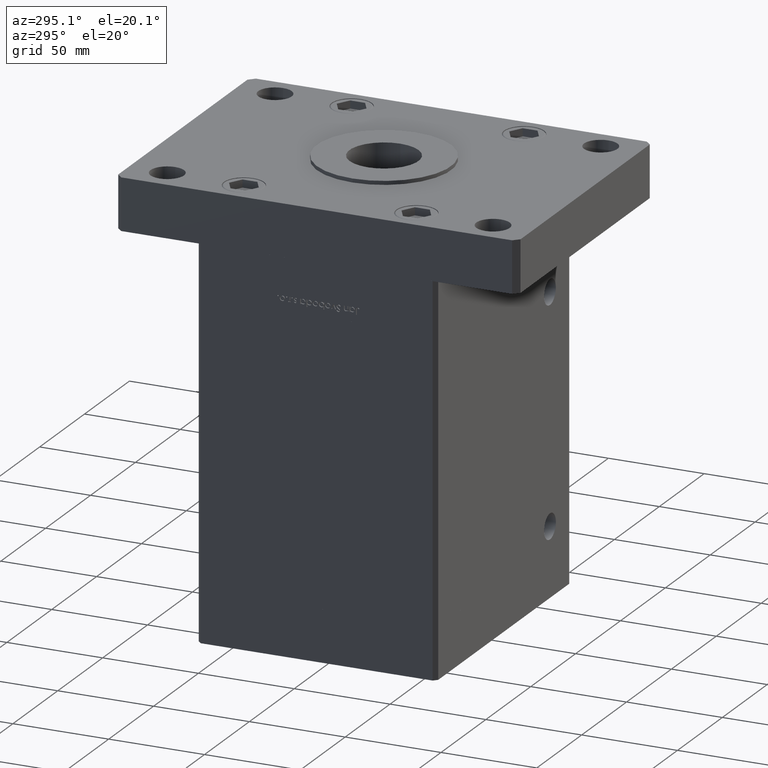
[diagram: clean part render]
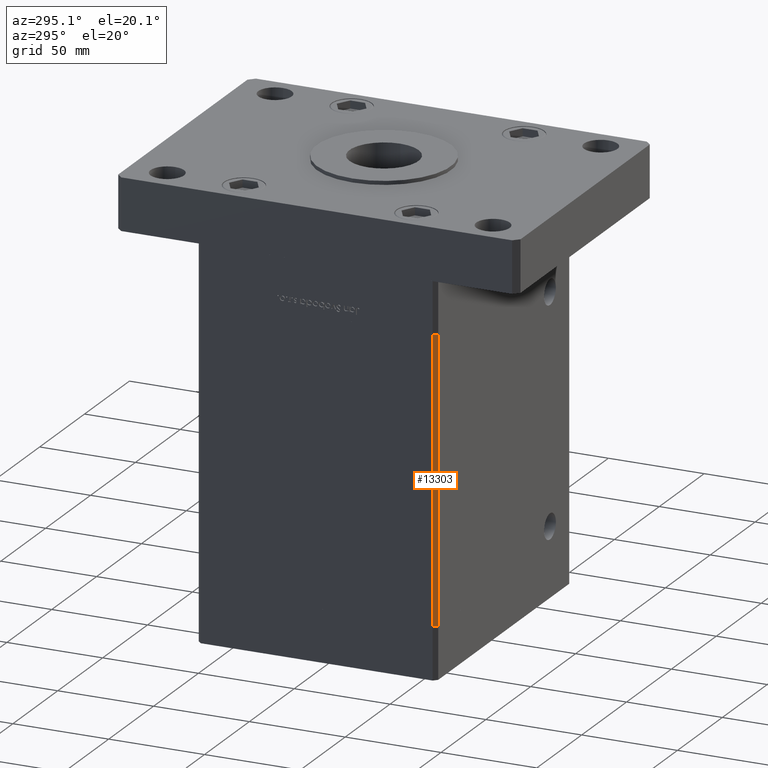
[diagram: same view with one face highlighted and labeled with its STEP entity id]
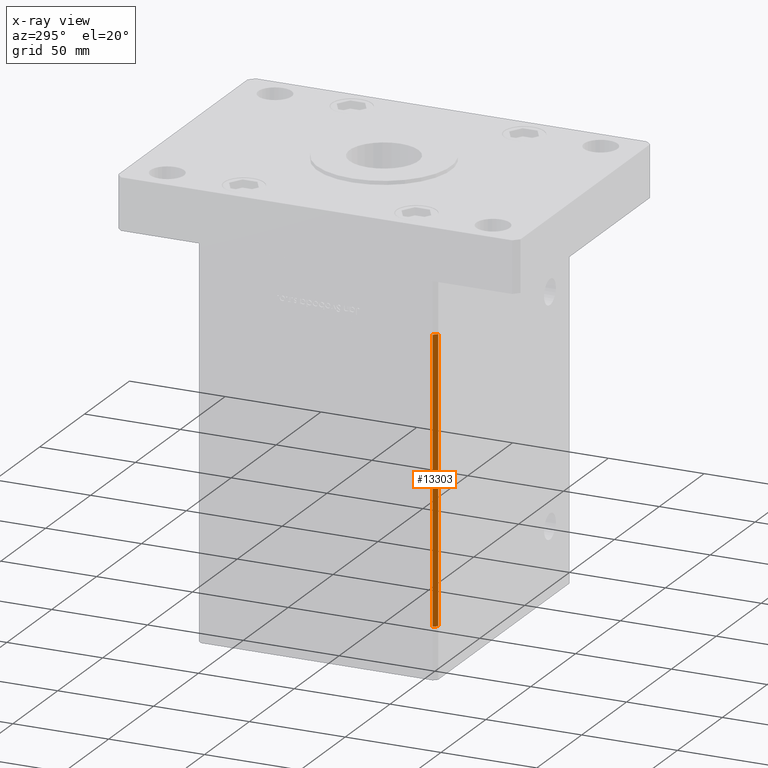
[diagram: x-ray of the same camera — body ghosted, the highlighted face saturated]
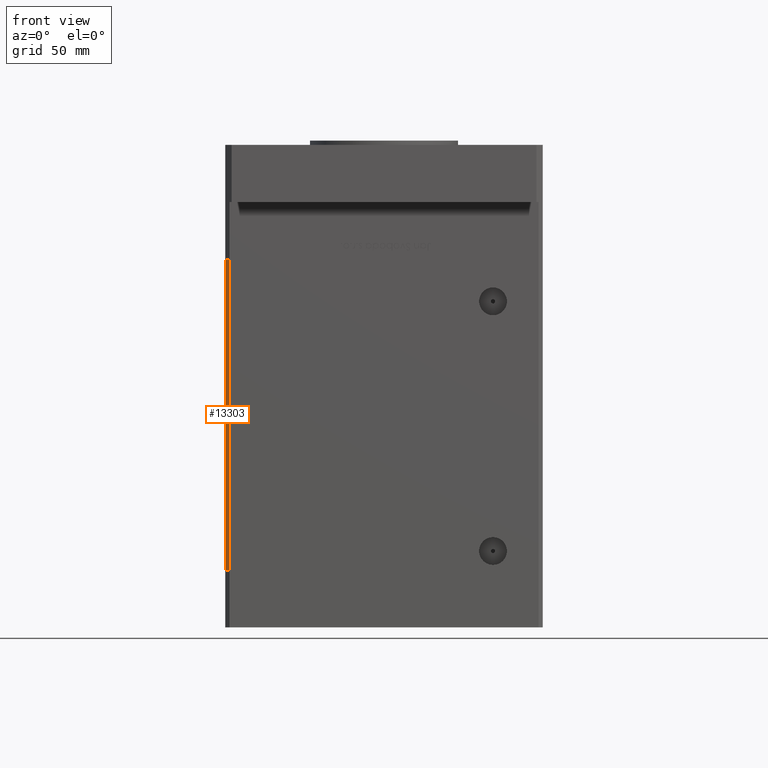
[diagram: same view with one face highlighted and labeled with its STEP entity id]
A machine part, auxiliary view. The second image highlights one B-rep face of the part: STEP entity #13303.
The next image is the same camera in x-ray: the body ghosted, the highlighted face saturated — about 0% of this face is hidden behind the body in this view.
A second angle (front view) of the same face is appended — the face is thin or edge-on in the first view.
In plain terms, the highlighted planar face has unit normal (0.7071, 0.7071, 0).
Its self-contained STEP definition (entity closure, byte-faithful):
#724 = EDGE_CURVE ( 'NONE', #26017, #29389, #10284, .T. ) ;
#1075 = LINE ( 'NONE', #42761, #29536 ) ;
#3327 = LINE ( 'NONE', #19012, #11166 ) ;
#5355 = VERTEX_POINT ( 'NONE', #26880 ) ;
#7055 = CARTESIAN_POINT ( 'NONE',  ( -74.99999999999998579, -60.50000000000000000, 147.0000000000000000 ) ) ;
#7624 = EDGE_LOOP ( 'NONE', ( #7954, #47527, #19306, #51967 ) ) ;
#7954 = ORIENTED_EDGE ( 'NONE', *, *, #724, .T. ) ;
#9001 = CARTESIAN_POINT ( 'NONE',  ( -74.99999999999998579, -60.50000000000000000, 147.0000000000000000 ) ) ;
#10284 = LINE ( 'NONE', #30592, #45245 ) ;
#11105 = LINE ( 'NONE', #7055, #11478 ) ;
#11166 = VECTOR ( 'NONE', #40142, 1000.000000000000114 ) ;
#11478 = VECTOR ( 'NONE', #23549, 1000.000000000000000 ) ;
#13231 = DIRECTION ( 'NONE',  ( -0.000000000000000000, -0.000000000000000000, -1.000000000000000000 ) ) ;
#13303 = ADVANCED_FACE ( 'NONE', ( #43096 ), #50986, .F. ) ;
#13578 = DIRECTION ( 'NONE',  ( -0.7071067811865474617, 0.7071067811865474617, 0.000000000000000000 ) ) ;
#14107 = CARTESIAN_POINT ( 'NONE',  ( -72.99999999999998579, -62.50000000000000000, 0.000000000000000000 ) ) ;
#16571 = VERTEX_POINT ( 'NONE', #28617 ) ;
#17291 = CARTESIAN_POINT ( 'NONE',  ( -74.99999999999998579, -60.50000000000000000, 0.000000000000000000 ) ) ;
#17915 = EDGE_CURVE ( 'NONE', #5355, #29389, #1075, .T. ) ;
#18130 = AXIS2_PLACEMENT_3D ( 'NONE', #9001, #50718, #13578 ) ;
#18399 = DIRECTION ( 'NONE',  ( 0.7071067811865474617, -0.7071067811865474617, 0.000000000000000000 ) ) ;
#19012 = CARTESIAN_POINT ( 'NONE',  ( -74.99999999999998579, -60.50000000000000000, 147.0000000000000000 ) ) ;
#19306 = ORIENTED_EDGE ( 'NONE', *, *, #45685, .F. ) ;
#23549 = DIRECTION ( 'NONE',  ( -0.000000000000000000, -0.000000000000000000, -1.000000000000000000 ) ) ;
#25822 = EDGE_CURVE ( 'NONE', #16571, #26017, #11105, .T. ) ;
#26017 = VERTEX_POINT ( 'NONE', #17291 ) ;
#26880 = CARTESIAN_POINT ( 'NONE',  ( -72.99999999999998579, -62.50000000000000000, 147.0000000000000000 ) ) ;
#28617 = CARTESIAN_POINT ( 'NONE',  ( -74.99999999999998579, -60.50000000000000000, 147.0000000000000000 ) ) ;
#29389 = VERTEX_POINT ( 'NONE', #14107 ) ;
#29536 = VECTOR ( 'NONE', #13231, 1000.000000000000000 ) ;
#30592 = CARTESIAN_POINT ( 'NONE',  ( -74.99999999999998579, -60.50000000000000000, 0.000000000000000000 ) ) ;
#40142 = DIRECTION ( 'NONE',  ( 0.7071067811865474617, -0.7071067811865474617, 0.000000000000000000 ) ) ;
#42761 = CARTESIAN_POINT ( 'NONE',  ( -72.99999999999998579, -62.50000000000000000, 147.0000000000000000 ) ) ;
#43096 = FACE_OUTER_BOUND ( 'NONE', #7624, .T. ) ;
#45245 = VECTOR ( 'NONE', #18399, 1000.000000000000114 ) ;
#45685 = EDGE_CURVE ( 'NONE', #16571, #5355, #3327, .T. ) ;
#47527 = ORIENTED_EDGE ( 'NONE', *, *, #17915, .F. ) ;
#50718 = DIRECTION ( 'NONE',  ( 0.7071067811865475727, 0.7071067811865475727, -0.000000000000000000 ) ) ;
#50986 = PLANE ( 'NONE',  #18130 ) ;
#51967 = ORIENTED_EDGE ( 'NONE', *, *, #25822, .T. ) ;